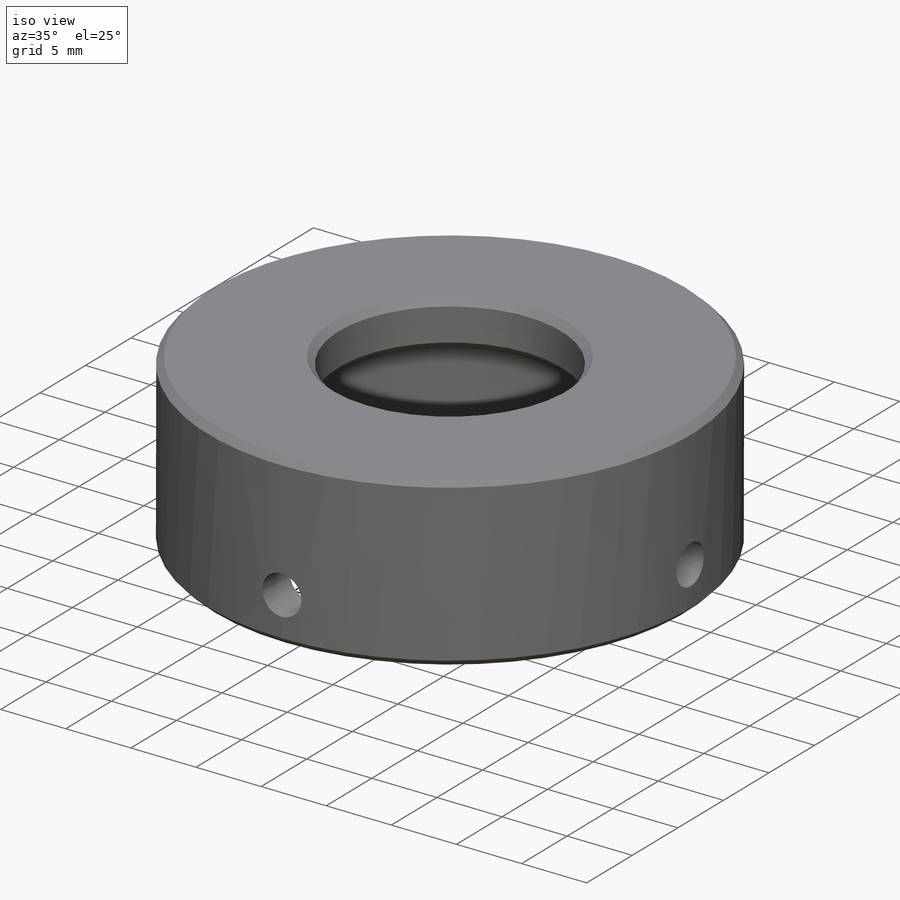
[diagram: iso view]
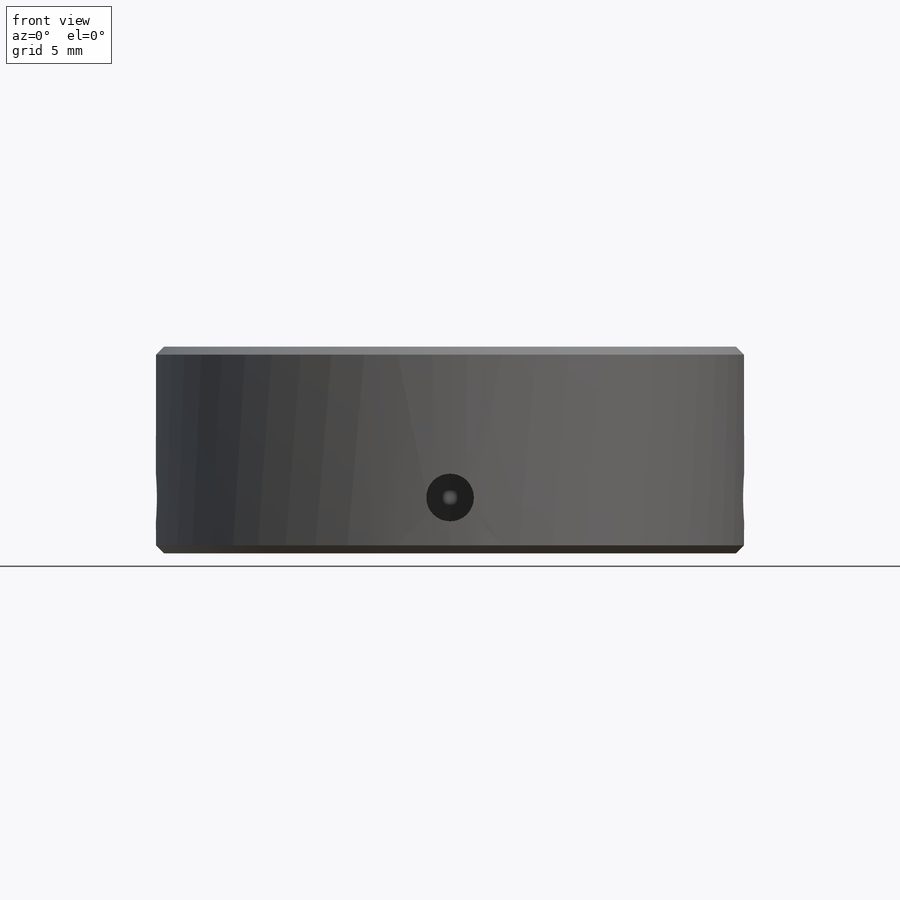
[diagram: front view]
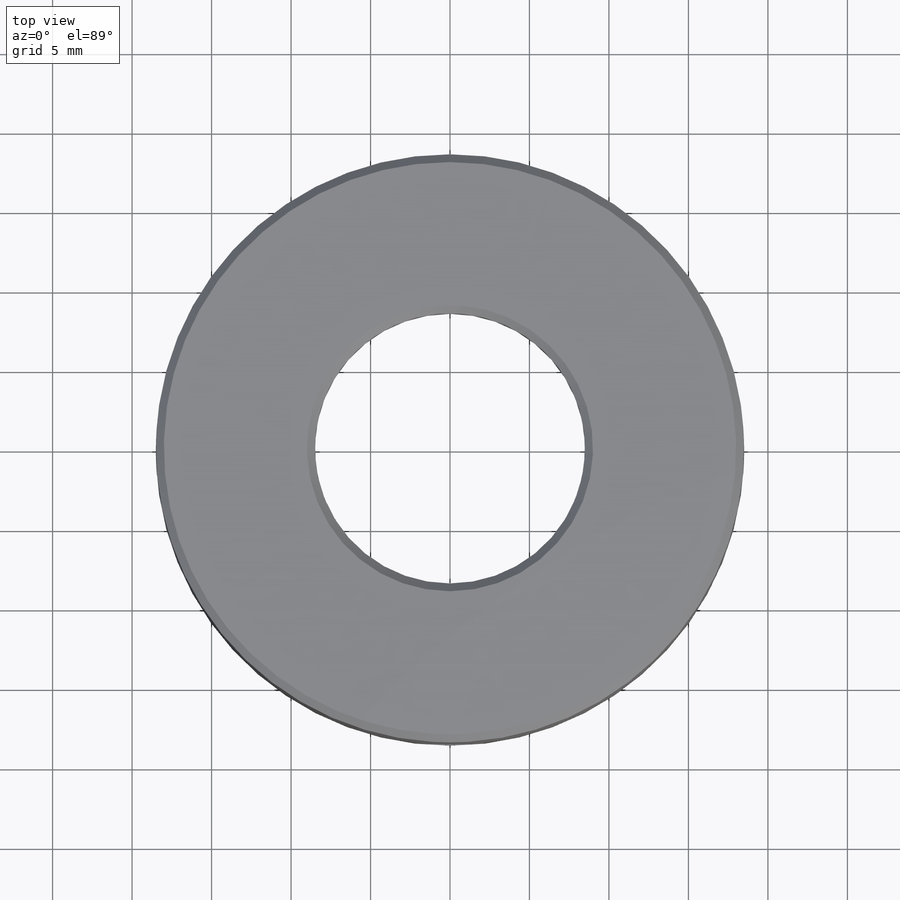
[diagram: top view]
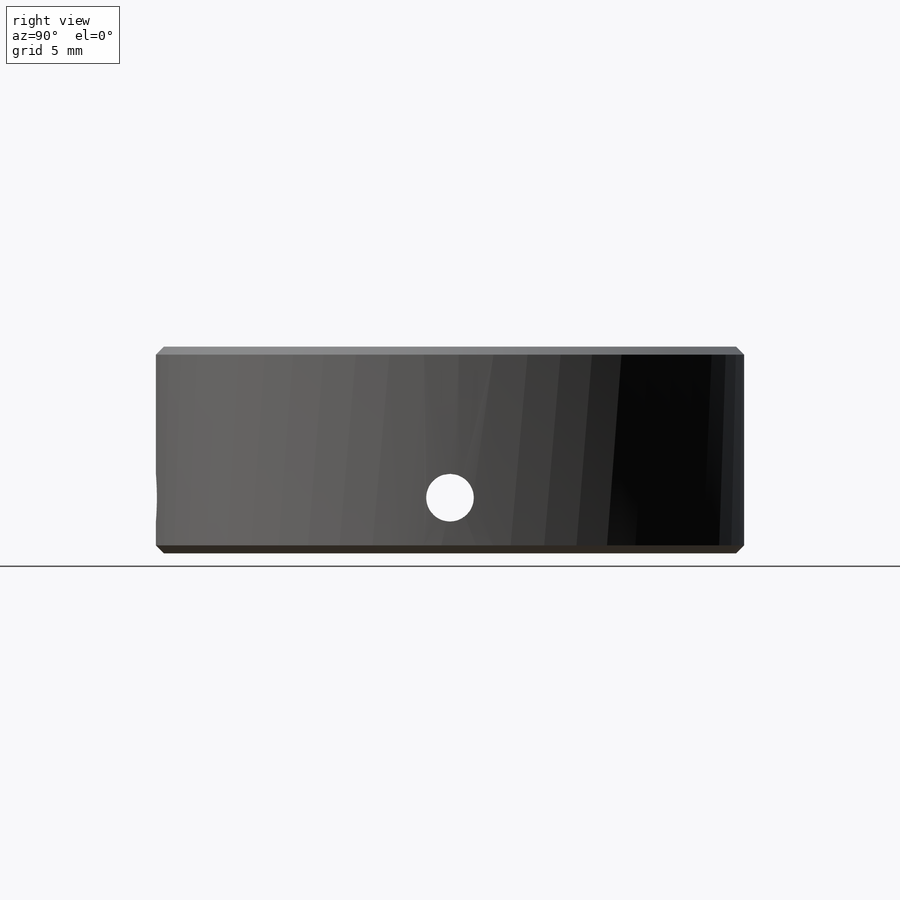
[diagram: right view]
SOLIDWORKS PART (.sldprt)
format: sldprt  version: not decoded by parser v0  size: 250,880 bytes
history: native  units: mm
features: sketch x3, material x1, revolve x1, chamfer x1, hole x1 (+15 scaffold rows collapsed)
feature tree (22):
  scaffold x15  (default folders/planes/origin — collapsed)
  material  "AISI 1020"
  sketch  "Sketch2"  dims[c1.D1=3.5mm c1.D2=2.0mm c1.D3=3.0mm c1.D4=0.75mm c1.D5=11.0mm c1.D6=3.0mm c2.D6=80.0deg c2.D3=1.25mm c2.D7=1.0mm c2.D5=15.0mm c3.D3=8.5mm c3.D5=15.5mm c3.D8=9.5mm c3.D2=3.0mm]
  revolve  "Revolve1"  Angle=360deg
  chamfer  "Chamfer1"  Distance=0.5mm Angle=45deg
  hole  "Ø3.0 (3) Diameter Hole1"  Diameter=3mm Depth=12mm
  sketch  "3DSketch1"  dims[D1=3.5mm D2=3.5mm]
  sketch  "Sketch3"  dims[hole-wizard template sketch: 47 standard entries collapsed; hole parameters kept: c15.Hole Depth=12.0mm c15.D3=~14.816244mm c15.Drill Angle=118.0deg]
decode coverage: 6 of 6 modeling features carry decoded parameters
note: ~ marks probable driven/reference dimensions
note: suppression state not decoded; provenance and decode notes live in map.json
